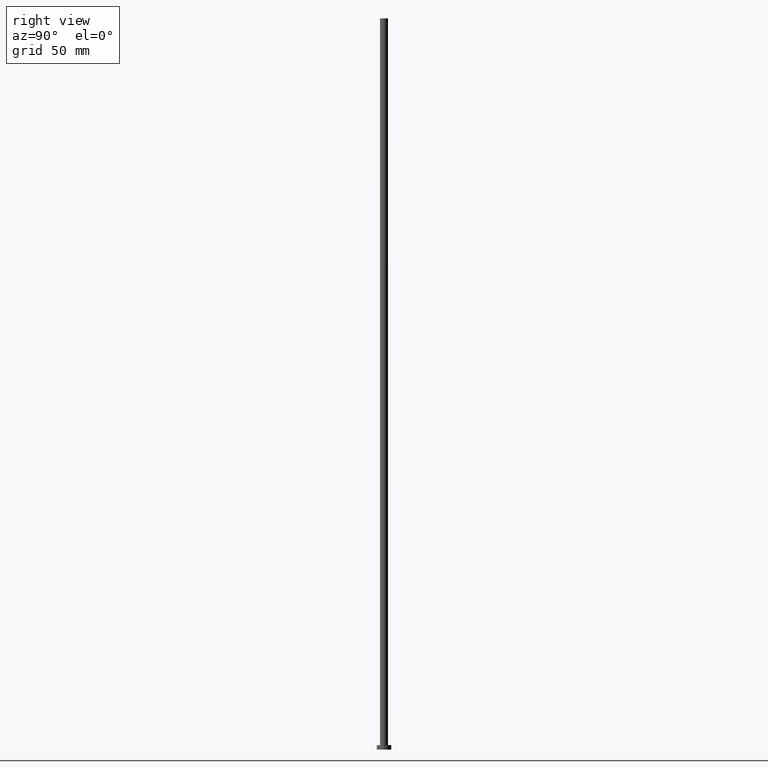
[diagram: clean part render]
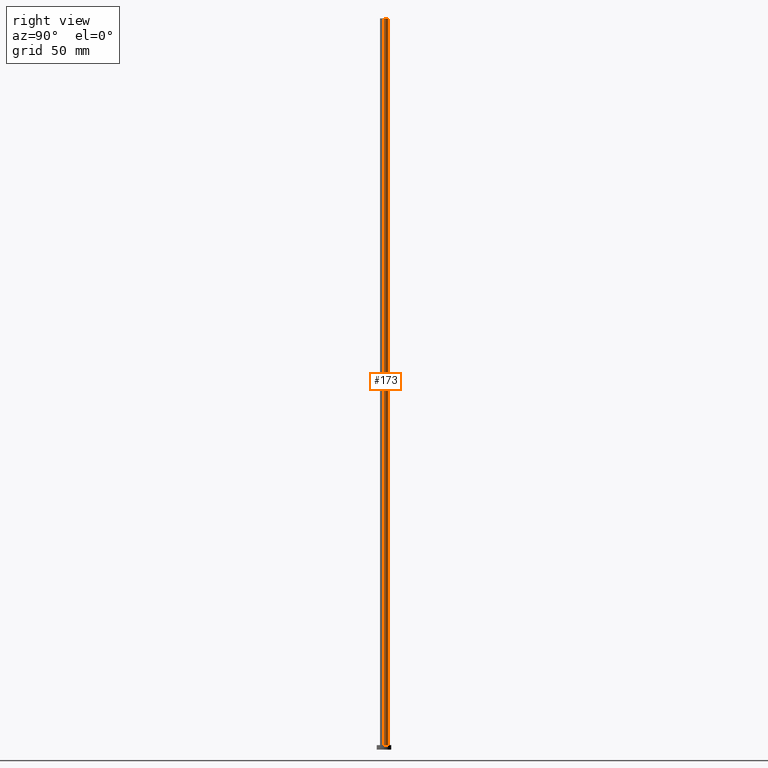
[diagram: same view with one face highlighted and labeled with its STEP entity id]
A machine part, right view. The second image highlights one B-rep face of the part: STEP entity #173.
In plain terms, the highlighted cylindrical surface (edge-blend (fillet) strip) has radius 2.75 mm, axis along (-0, -0, -1).
Its self-contained STEP definition (entity closure, byte-faithful):
#5 = CARTESIAN_POINT ( 'NONE',  ( -2.750000000000000000, 0.000000000000000000, 500.0000000000000000 ) ) ;
#6 = VERTEX_POINT ( 'NONE', #219 ) ;
#10 = DIRECTION ( 'NONE',  ( -1.000000000000000000, 0.000000000000000000, 0.000000000000000000 ) ) ;
#12 = DIRECTION ( 'NONE',  ( 1.000000000000000000, 0.000000000000000000, 0.000000000000000000 ) ) ;
#24 = CARTESIAN_POINT ( 'NONE',  ( 0.000000000000000000, 0.000000000000000000, 500.0000000000000000 ) ) ;
#26 = LINE ( 'NONE', #62, #95 ) ;
#33 = CARTESIAN_POINT ( 'NONE',  ( 0.000000000000000000, 0.000000000000000000, 500.0000000000000000 ) ) ;
#40 = VECTOR ( 'NONE', #55, 1000.000000000000000 ) ;
#55 = DIRECTION ( 'NONE',  ( -0.000000000000000000, -0.000000000000000000, -1.000000000000000000 ) ) ;
#58 = AXIS2_PLACEMENT_3D ( 'NONE', #24, #102, #10 ) ;
#62 = CARTESIAN_POINT ( 'NONE',  ( 2.750000000000000000, 3.367778697655220519E-16, 500.0000000000000000 ) ) ;
#63 = CARTESIAN_POINT ( 'NONE',  ( 2.750000000000000000, 3.367778697655220519E-16, 3.000000000000000000 ) ) ;
#89 = CYLINDRICAL_SURFACE ( 'NONE', #58, 2.750000000000000000 ) ;
#95 = VECTOR ( 'NONE', #249, 1000.000000000000000 ) ;
#102 = DIRECTION ( 'NONE',  ( -0.000000000000000000, -0.000000000000000000, -1.000000000000000000 ) ) ;
#109 = DIRECTION ( 'NONE',  ( 0.000000000000000000, 0.000000000000000000, 1.000000000000000000 ) ) ;
#110 = EDGE_CURVE ( 'NONE', #119, #134, #142, .T. ) ;
#119 = VERTEX_POINT ( 'NONE', #235 ) ;
#121 = CARTESIAN_POINT ( 'NONE',  ( 0.000000000000000000, 0.000000000000000000, 3.000000000000000000 ) ) ;
#122 = DIRECTION ( 'NONE',  ( 0.000000000000000000, 0.000000000000000000, 1.000000000000000000 ) ) ;
#133 = ORIENTED_EDGE ( 'NONE', *, *, #225, .F. ) ;
#134 = VERTEX_POINT ( 'NONE', #189 ) ;
#137 = CIRCLE ( 'NONE', #215, 2.750000000000000000 ) ;
#138 = ORIENTED_EDGE ( 'NONE', *, *, #110, .F. ) ;
#142 = CIRCLE ( 'NONE', #204, 2.750000000000000000 ) ;
#164 = DIRECTION ( 'NONE',  ( 1.000000000000000000, 0.000000000000000000, 0.000000000000000000 ) ) ;
#173 = ADVANCED_FACE ( 'NONE', ( #188 ), #89, .T. ) ;
#175 = LINE ( 'NONE', #5, #40 ) ;
#177 = VERTEX_POINT ( 'NONE', #63 ) ;
#180 = EDGE_CURVE ( 'NONE', #177, #6, #137, .T. ) ;
#188 = FACE_OUTER_BOUND ( 'NONE', #217, .T. ) ;
#189 = CARTESIAN_POINT ( 'NONE',  ( -2.750000000000000000, 0.000000000000000000, 500.0000000000000000 ) ) ;
#190 = EDGE_CURVE ( 'NONE', #119, #177, #26, .T. ) ;
#204 = AXIS2_PLACEMENT_3D ( 'NONE', #33, #109, #164 ) ;
#215 = AXIS2_PLACEMENT_3D ( 'NONE', #121, #122, #12 ) ;
#217 = EDGE_LOOP ( 'NONE', ( #138, #224, #247, #133 ) ) ;
#219 = CARTESIAN_POINT ( 'NONE',  ( -2.750000000000000000, 0.000000000000000000, 3.000000000000000000 ) ) ;
#224 = ORIENTED_EDGE ( 'NONE', *, *, #190, .T. ) ;
#225 = EDGE_CURVE ( 'NONE', #134, #6, #175, .T. ) ;
#235 = CARTESIAN_POINT ( 'NONE',  ( 2.750000000000000000, 3.367778697655220519E-16, 500.0000000000000000 ) ) ;
#247 = ORIENTED_EDGE ( 'NONE', *, *, #180, .T. ) ;
#249 = DIRECTION ( 'NONE',  ( -0.000000000000000000, -0.000000000000000000, -1.000000000000000000 ) ) ;